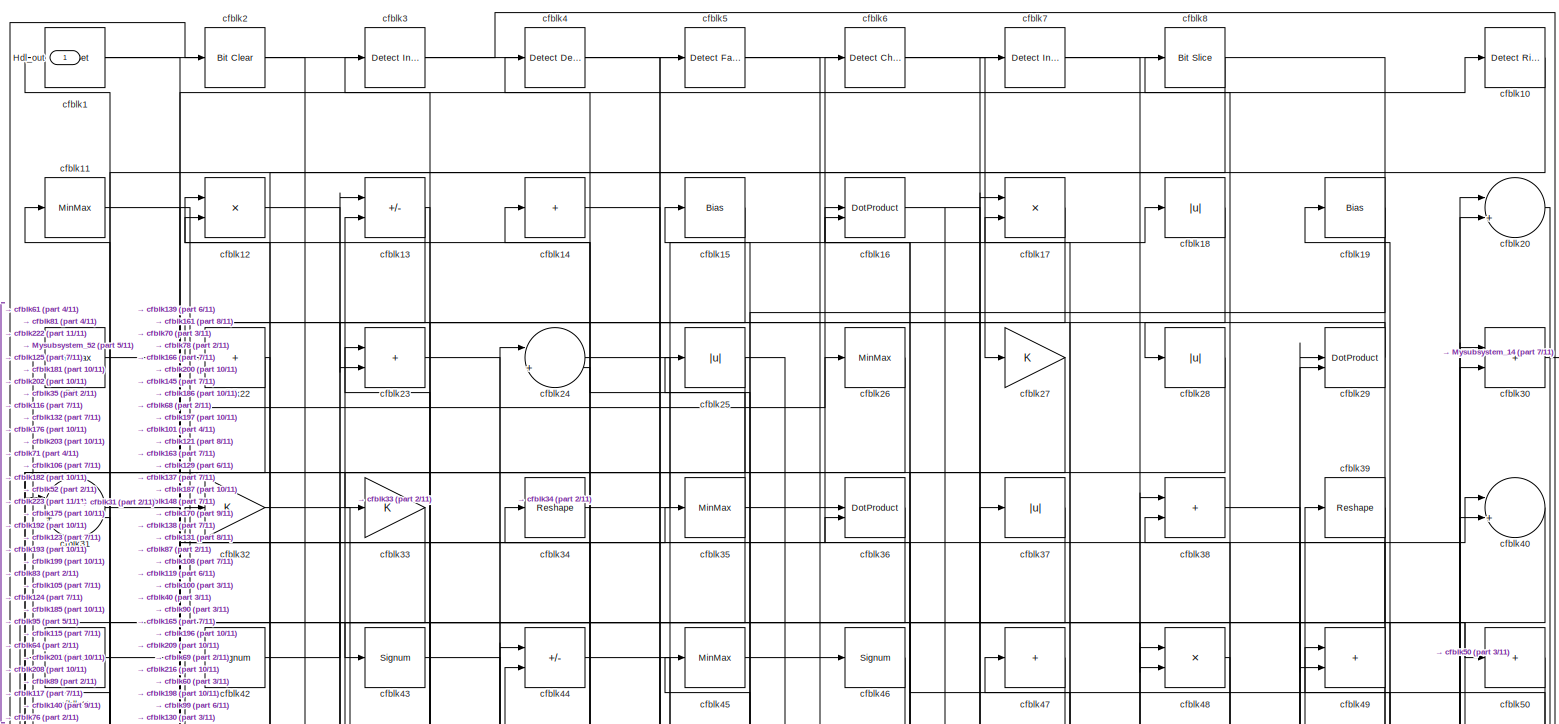
[diagram: root canvas - part 1/11, full width, top band]
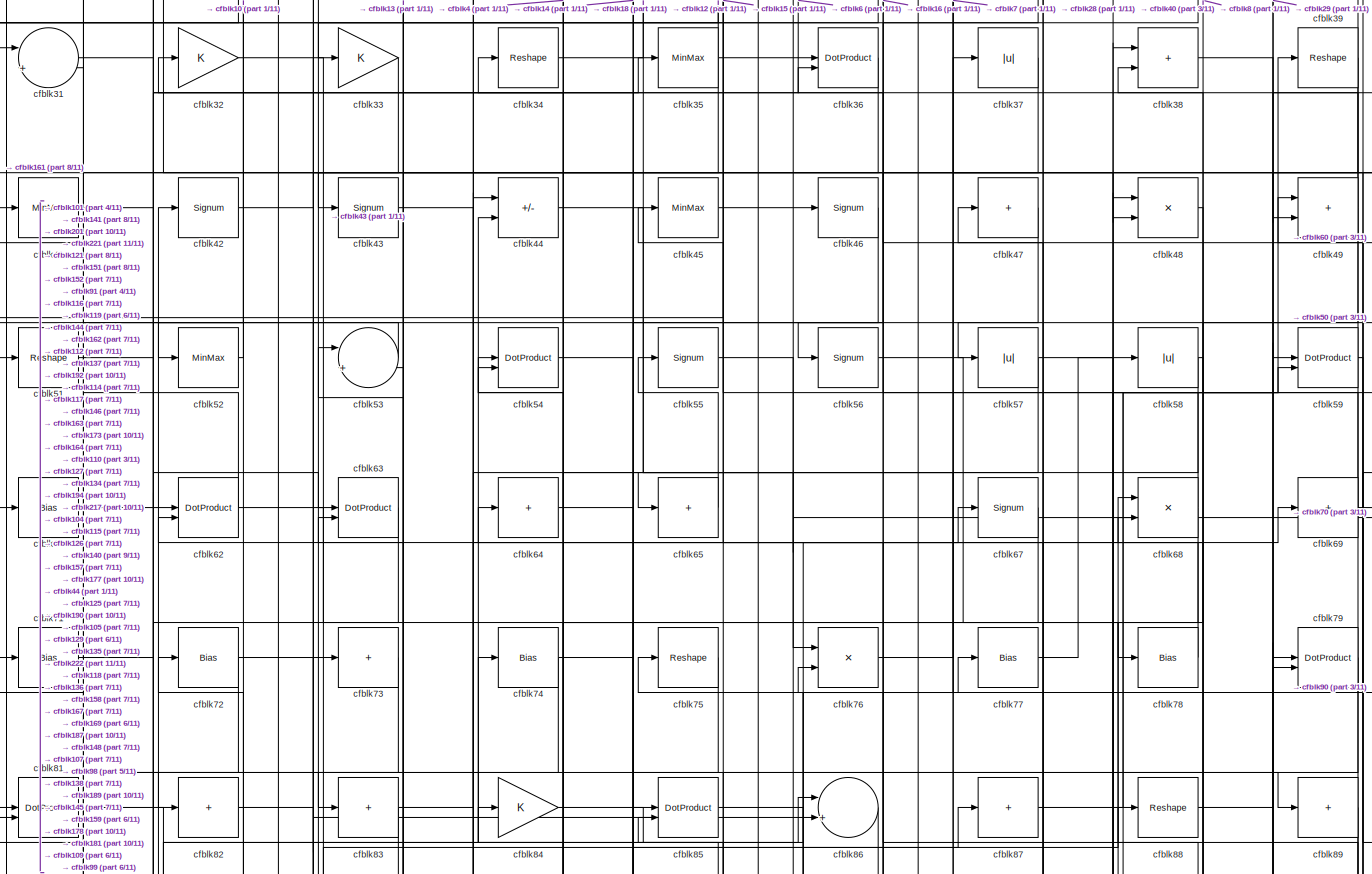
[diagram: root canvas - part 2/11, full width, top band]
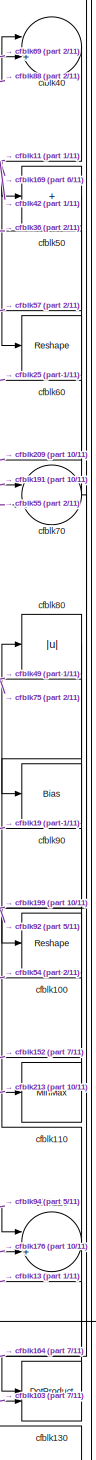
[diagram: root canvas - part 3/11, middle right region]
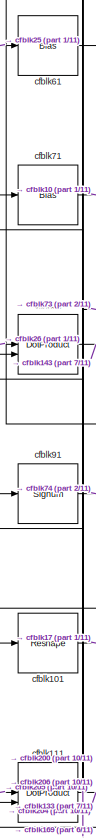
[diagram: root canvas - part 4/11, middle left region]
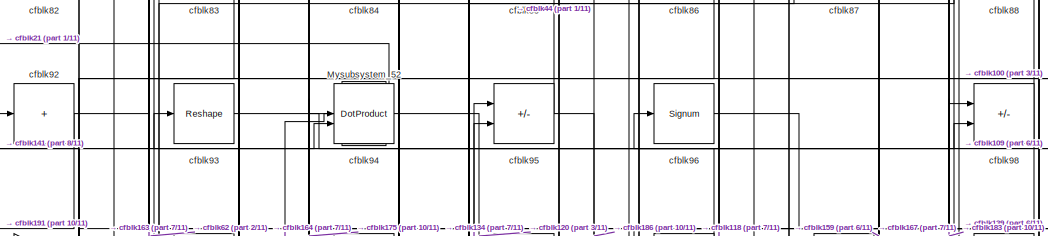
[diagram: root canvas - part 5/11, central region]
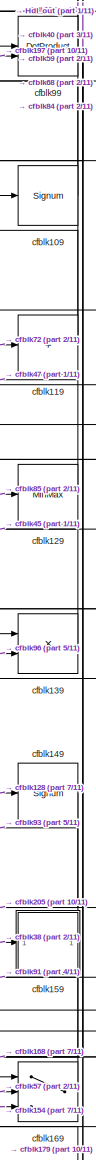
[diagram: root canvas - part 6/11, middle right region]
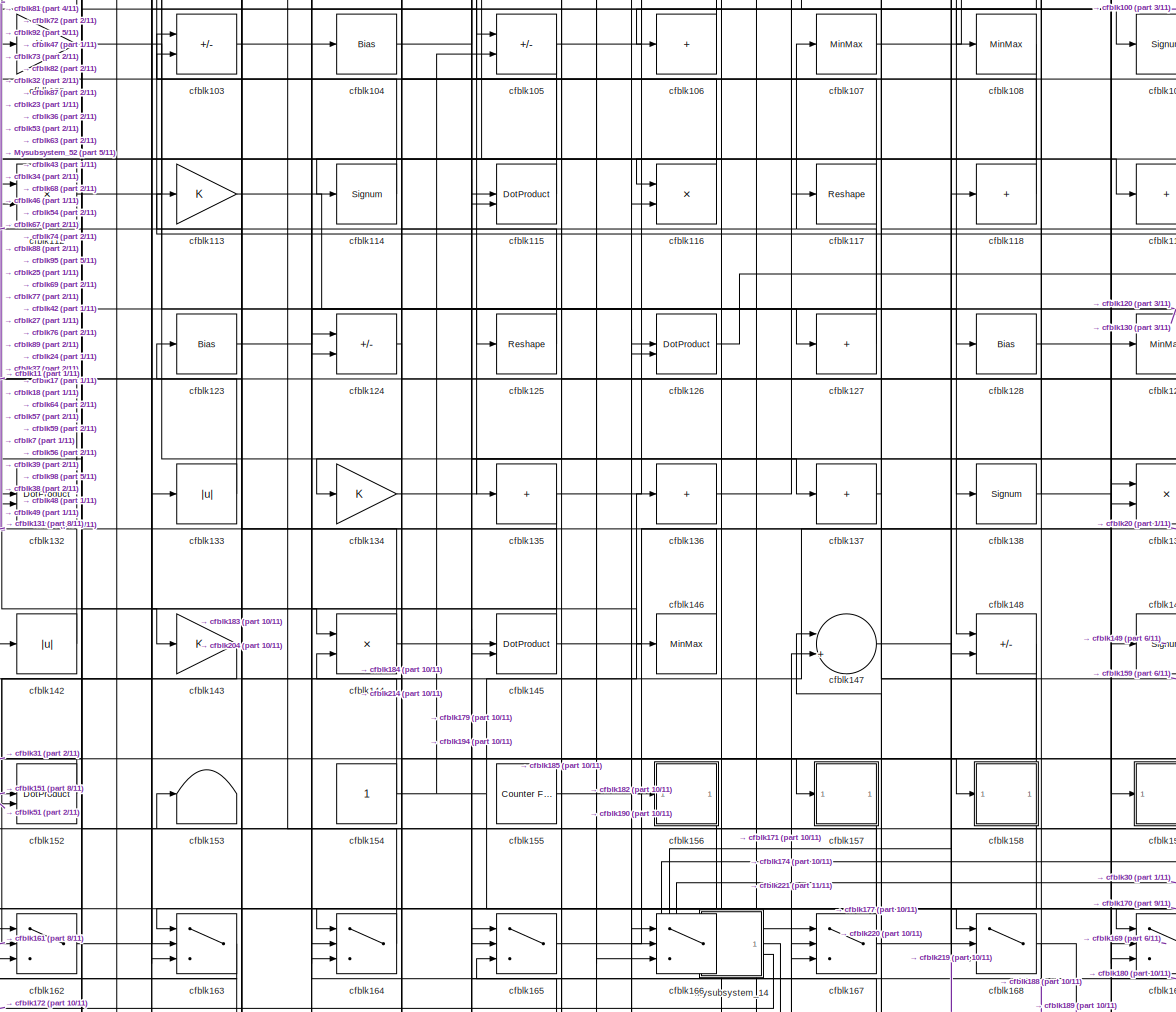
[diagram: root canvas - part 7/11, central region]
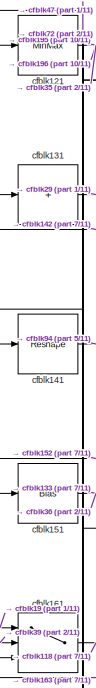
[diagram: root canvas - part 8/11, middle left region]
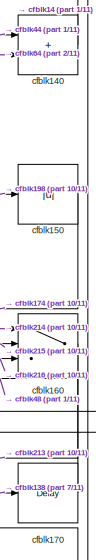
[diagram: root canvas - part 9/11, middle right region]
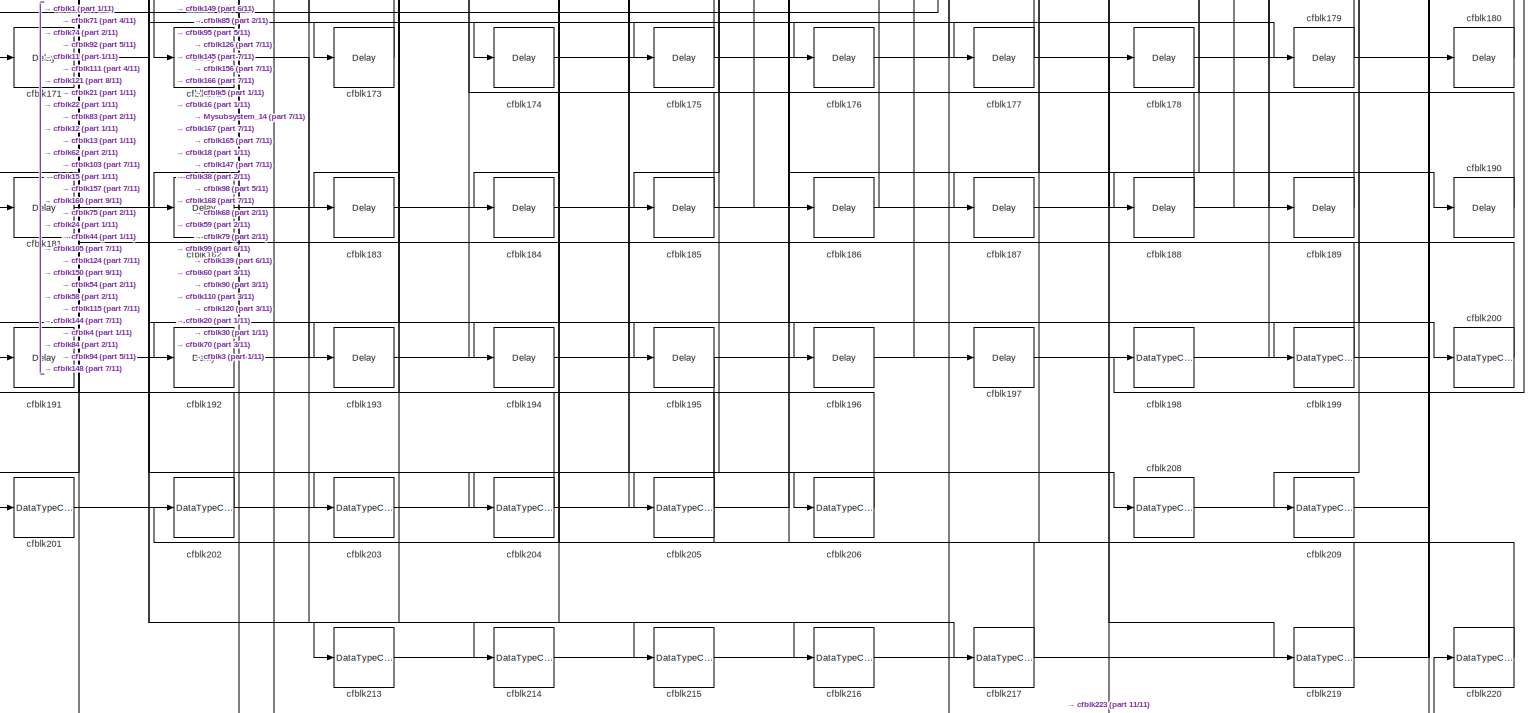
[diagram: root canvas - part 10/11, full width, bottom band]
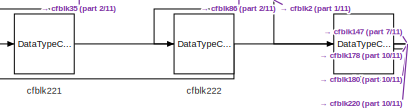
[diagram: root canvas - part 11/11, bottom left region]
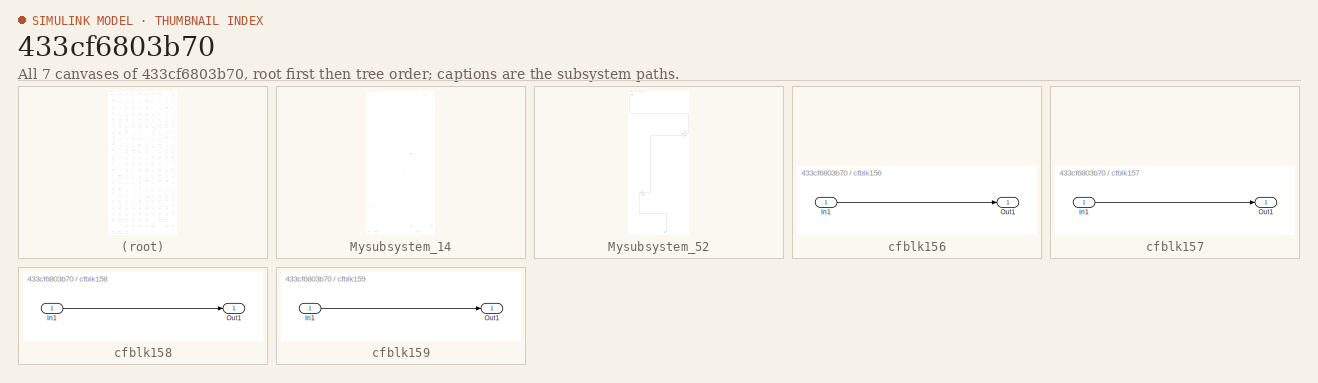
[diagram: thumbnail index - all 7 canvases of the model, root first then tree order]
MODEL slx_433cf6803b70
KIND model
CONFIG AbsTol = auto
CONFIG EnableMultiTasking = off
CONFIG FixedStep = auto
CONFIG MaxStep = auto
CONFIG MinStep = auto
CONFIG RelTol = 1e-3
CONFIG SampleTimeConstraint = Unconstrained
CONFIG SolverName = VariableStepAuto
CONFIG StartTime = 0.0
CONFIG StopTime = 10.0
BLOCK [Outport] Hdl_out
  OutDataTypeStr = uint8
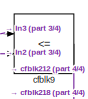
[diagram: Mysubsystem_14 - part 1/4, top right region]
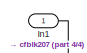
[diagram: Mysubsystem_14 - part 2/4, top right region]
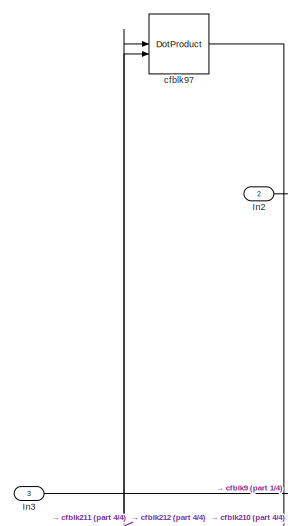
[diagram: Mysubsystem_14 - part 3/4, central region]
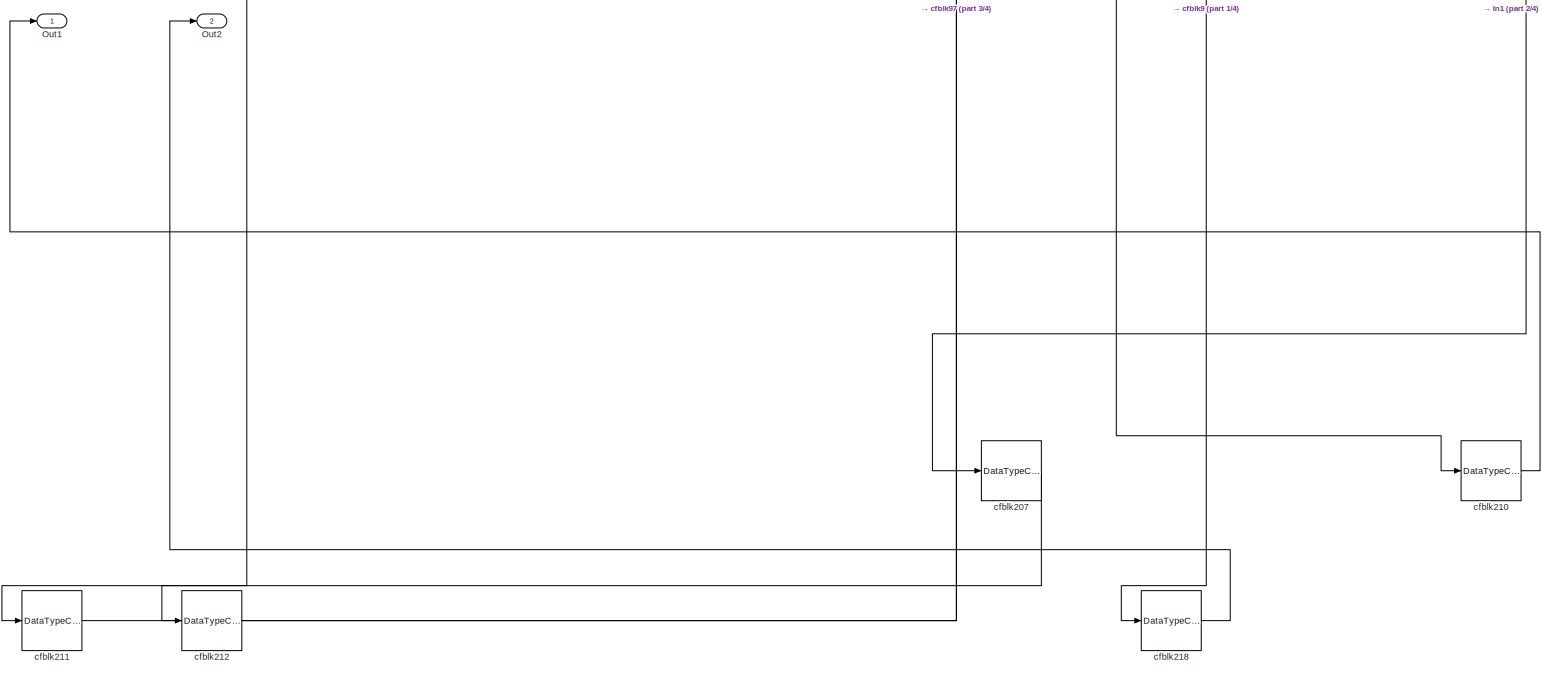
[diagram: Mysubsystem_14 - part 4/4, full width, bottom band]
BLOCK [SubSystem] Mysubsystem_14
  RTWFcnName = Mysubsystem_14
  RTWFcnNameOpts = User specified
  RTWFileNameOpts = Use function name
  RTWSystemCode = Reusable function
  TreatAsAtomicUnit = on
BLOCK [Inport] Mysubsystem_14/In1
BLOCK [Inport] Mysubsystem_14/In2
  Port = 2
BLOCK [Inport] Mysubsystem_14/In3
  Port = 3
BLOCK [Outport] Mysubsystem_14/Out1
BLOCK [Outport] Mysubsystem_14/Out2
  Port = 2
BLOCK [DataTypeConversion] Mysubsystem_14/cfblk207
  OutDataTypeStr = uint8
  RndMeth = Floor
  SaturateOnIntegerOverflow = off
BLOCK [DataTypeConversion] Mysubsystem_14/cfblk210
  OutDataTypeStr = uint8
  RndMeth = Floor
  SaturateOnIntegerOverflow = off
BLOCK [DataTypeConversion] Mysubsystem_14/cfblk211
  OutDataTypeStr = uint8
  RndMeth = Floor
  SaturateOnIntegerOverflow = off
BLOCK [DataTypeConversion] Mysubsystem_14/cfblk212
  OutDataTypeStr = uint8
  RndMeth = Floor
  SaturateOnIntegerOverflow = off
BLOCK [DataTypeConversion] Mysubsystem_14/cfblk218
  OutDataTypeStr = uint8
  RndMeth = Floor
  SaturateOnIntegerOverflow = off
BLOCK [RelationalOperator] Mysubsystem_14/cfblk9
  InputSameDT = off
  Operator = <=
  OutDataTypeStr = boolean
BLOCK [DotProduct] Mysubsystem_14/cfblk97
  OutDataTypeStr = Inherit: Inherit via internal rule
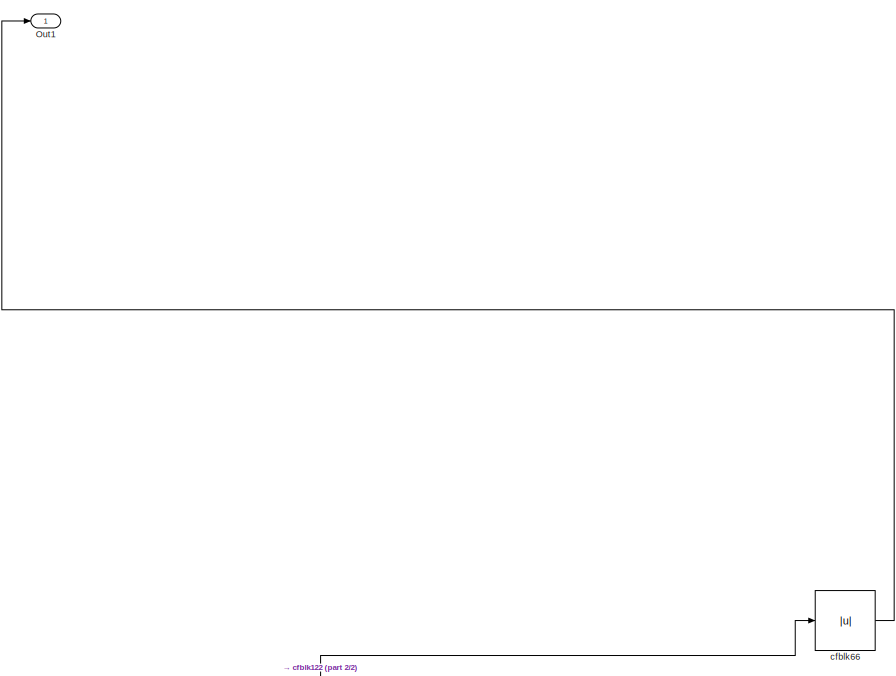
[diagram: Mysubsystem_52 - part 1/2, full width, top band]
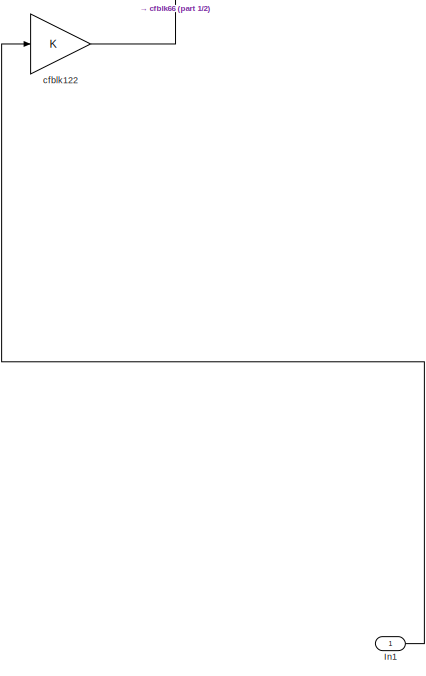
[diagram: Mysubsystem_52 - part 2/2, bottom center region]
BLOCK [SubSystem] Mysubsystem_52
  RTWFcnName = Mysubsystem_52
  RTWFcnNameOpts = User specified
  RTWFileNameOpts = Use function name
  RTWSystemCode = Reusable function
  TreatAsAtomicUnit = on
BLOCK [Inport] Mysubsystem_52/In1
BLOCK [Outport] Mysubsystem_52/Out1
BLOCK [Gain] Mysubsystem_52/cfblk122
BLOCK [Abs] Mysubsystem_52/cfblk66
  SaturateOnIntegerOverflow = off
BLOCK [Reference] cfblk1  REF=simulink/Logic and Bit
Operations/Bit Set
  LibrarySourceBlock = hdlsllib/Logic and Bit\nOperations/Bit Set
  SourceBlock = simulink/Logic and Bit\nOperations/Bit Set
  SourceType = Bit Set
BLOCK [Reference] cfblk10  REF=hdlsllib/Logic and Bit
Operations/Detect Rise
Positive
  SourceBlock = hdlsllib/Logic and Bit\nOperations/Detect Rise\nPositive
  SourceType = Detect Rise Positive
BLOCK [Reshape] cfblk100
BLOCK [Reshape] cfblk101
BLOCK [Gain] cfblk102
  OutDataTypeStr = uint8
BLOCK [Sum] cfblk103
  IconShape = rectangular
  Inputs = +-
  OutDataTypeStr = uint8
BLOCK [Bias] cfblk104
  Bias = 0.0
  SaturateOnIntegerOverflow = off
BLOCK [Sum] cfblk105
  IconShape = rectangular
  Inputs = +-
  OutDataTypeStr = uint8
BLOCK [Sum] cfblk106
  IconShape = rectangular
  Inputs = +
  OutDataTypeStr = uint8
BLOCK [MinMax] cfblk107
  OutDataTypeStr = uint8
BLOCK [MinMax] cfblk108
  OutDataTypeStr = uint8
BLOCK [Signum] cfblk109
BLOCK [MinMax] cfblk11
  OutDataTypeStr = uint8
BLOCK [MinMax] cfblk110
  OutDataTypeStr = uint8
BLOCK [DotProduct] cfblk111
  OutDataTypeStr = uint8
BLOCK [Product] cfblk112
  Inputs = */
  OutDataTypeStr = uint8
  RndMeth = Zero
  SaturateOnIntegerOverflow = on
BLOCK [Gain] cfblk113
  OutDataTypeStr = uint8
BLOCK [Signum] cfblk114
BLOCK [DotProduct] cfblk115
  OutDataTypeStr = uint8
BLOCK [Product] cfblk116
  Inputs = */
  OutDataTypeStr = uint8
  RndMeth = Zero
  SaturateOnIntegerOverflow = on
BLOCK [Reshape] cfblk117
BLOCK [Sum] cfblk118
  IconShape = rectangular
  Inputs = +
  OutDataTypeStr = uint8
BLOCK [Sum] cfblk119
  IconShape = rectangular
  Inputs = +
  OutDataTypeStr = uint8
BLOCK [Product] cfblk12
  Inputs = */
  OutDataTypeStr = uint8
  RndMeth = Zero
  SaturateOnIntegerOverflow = on
BLOCK [Sum] cfblk120
  Inputs = |++
  OutDataTypeStr = uint8
BLOCK [MinMax] cfblk121
  OutDataTypeStr = uint8
BLOCK [Bias] cfblk123
  Bias = 0.0
  SaturateOnIntegerOverflow = off
BLOCK [Sum] cfblk124
  IconShape = rectangular
  Inputs = +-
  OutDataTypeStr = uint8
BLOCK [Reshape] cfblk125
BLOCK [DotProduct] cfblk126
  OutDataTypeStr = uint8
BLOCK [Sum] cfblk127
  IconShape = rectangular
  Inputs = +
  OutDataTypeStr = uint8
BLOCK [Bias] cfblk128
  Bias = 0.0
  SaturateOnIntegerOverflow = off
BLOCK [MinMax] cfblk129
  OutDataTypeStr = uint8
BLOCK [Sum] cfblk13
  IconShape = rectangular
  Inputs = +-
  OutDataTypeStr = uint8
BLOCK [DotProduct] cfblk130
  OutDataTypeStr = uint8
BLOCK [Sum] cfblk131
  IconShape = rectangular
  Inputs = +
  OutDataTypeStr = uint8
BLOCK [DotProduct] cfblk132
  OutDataTypeStr = uint8
BLOCK [Abs] cfblk133
  OutDataTypeStr = uint8
  SaturateOnIntegerOverflow = off
BLOCK [Gain] cfblk134
  OutDataTypeStr = uint8
BLOCK [Sum] cfblk135
  IconShape = rectangular
  Inputs = +
  OutDataTypeStr = uint8
BLOCK [Sum] cfblk136
  IconShape = rectangular
  Inputs = +
  OutDataTypeStr = uint8
BLOCK [Sum] cfblk137
  IconShape = rectangular
  Inputs = +
  OutDataTypeStr = uint8
BLOCK [Signum] cfblk138
BLOCK [Product] cfblk139
  Inputs = */
  OutDataTypeStr = uint8
  RndMeth = Zero
  SaturateOnIntegerOverflow = on
BLOCK [Sum] cfblk14
  IconShape = rectangular
  Inputs = +
  OutDataTypeStr = uint8
BLOCK [Sum] cfblk140
  IconShape = rectangular
  OutDataTypeStr = uint8
BLOCK [Reshape] cfblk141
BLOCK [Abs] cfblk142
  OutDataTypeStr = uint8
  SaturateOnIntegerOverflow = off
BLOCK [Gain] cfblk143
  OutDataTypeStr = uint8
BLOCK [Product] cfblk144
  Inputs = */
  OutDataTypeStr = uint8
  RndMeth = Zero
  SaturateOnIntegerOverflow = on
BLOCK [DotProduct] cfblk145
  OutDataTypeStr = uint8
BLOCK [MinMax] cfblk146
  OutDataTypeStr = uint8
BLOCK [Sum] cfblk147
  Inputs = |++
  OutDataTypeStr = uint8
BLOCK [Sum] cfblk148
  IconShape = rectangular
  Inputs = +-
  OutDataTypeStr = uint8
BLOCK [Signum] cfblk149
BLOCK [Bias] cfblk15
  Bias = 0.0
  SaturateOnIntegerOverflow = off
BLOCK [Abs] cfblk150
  OutDataTypeStr = uint8
  SaturateOnIntegerOverflow = off
BLOCK [Bias] cfblk151
  Bias = 0.0
  SaturateOnIntegerOverflow = off
BLOCK [DotProduct] cfblk152
  OutDataTypeStr = uint8
BLOCK [Terminator] cfblk153
BLOCK [Constant] cfblk154
  OutDataTypeStr = uint8
  SampleTime = -1
BLOCK [Reference] cfblk155  REF=hdlsllib/Sources/Counter
Free-Running
  SourceBlock = hdlsllib/Sources/Counter\nFree-Running
  SourceType = Counter Free-Running
BLOCK [SubSystem] cfblk156
  LibrarySourceBlock = hdlsllib/Ports &\nSubsystems/Subsystem
BLOCK [Inport] cfblk156/In1
BLOCK [Outport] cfblk156/Out1
BLOCK [SubSystem] cfblk157
  LibrarySourceBlock = hdlsllib/Ports &\nSubsystems/Subsystem
BLOCK [Inport] cfblk157/In1
BLOCK [Outport] cfblk157/Out1
BLOCK [SubSystem] cfblk158
  LibrarySourceBlock = hdlsllib/Ports &\nSubsystems/Subsystem
BLOCK [Inport] cfblk158/In1
BLOCK [Outport] cfblk158/Out1
BLOCK [SubSystem] cfblk159
  LibrarySourceBlock = hdlsllib/Ports &\nSubsystems/Subsystem
BLOCK [Inport] cfblk159/In1
BLOCK [Outport] cfblk159/Out1
BLOCK [DotProduct] cfblk16
  OutDataTypeStr = uint8
BLOCK [Switch] cfblk160
  InputSameDT = off
  OutDataTypeStr = uint8
  SaturateOnIntegerOverflow = off
BLOCK [Switch] cfblk161
  InputSameDT = off
  OutDataTypeStr = uint8
  SaturateOnIntegerOverflow = off
BLOCK [Switch] cfblk162
  InputSameDT = off
  OutDataTypeStr = uint8
  SaturateOnIntegerOverflow = off
BLOCK [Switch] cfblk163
  InputSameDT = off
  OutDataTypeStr = uint8
  SaturateOnIntegerOverflow = off
BLOCK [Switch] cfblk164
  InputSameDT = off
  OutDataTypeStr = uint8
  SaturateOnIntegerOverflow = off
BLOCK [Switch] cfblk165
  InputSameDT = off
  OutDataTypeStr = uint8
  SaturateOnIntegerOverflow = off
BLOCK [Switch] cfblk166
  InputSameDT = off
  OutDataTypeStr = uint8
  SaturateOnIntegerOverflow = off
BLOCK [Switch] cfblk167
  InputSameDT = off
  OutDataTypeStr = uint8
  SaturateOnIntegerOverflow = off
BLOCK [Switch] cfblk168
  InputSameDT = off
  OutDataTypeStr = uint8
  SaturateOnIntegerOverflow = off
BLOCK [Switch] cfblk169
  InputSameDT = off
  OutDataTypeStr = uint8
  SaturateOnIntegerOverflow = off
BLOCK [Product] cfblk17
  Inputs = */
  OutDataTypeStr = uint8
  RndMeth = Zero
  SaturateOnIntegerOverflow = on
BLOCK [Delay] cfblk170
  InputPortMap = u0
  SampleTime = 1
BLOCK [Delay] cfblk171
  InputPortMap = u0
  SampleTime = 1
BLOCK [Delay] cfblk172
  InputPortMap = u0
  SampleTime = 1
BLOCK [Delay] cfblk173
  InputPortMap = u0
  SampleTime = 1
BLOCK [Delay] cfblk174
  InputPortMap = u0
  SampleTime = 1
BLOCK [Delay] cfblk175
  InputPortMap = u0
  SampleTime = 1
BLOCK [Delay] cfblk176
  InputPortMap = u0
  SampleTime = 1
BLOCK [Delay] cfblk177
  InputPortMap = u0
  SampleTime = 1
BLOCK [Delay] cfblk178
  InputPortMap = u0
  SampleTime = 1
BLOCK [Delay] cfblk179
  InputPortMap = u0
  SampleTime = 1
BLOCK [Abs] cfblk18
  OutDataTypeStr = uint8
  SaturateOnIntegerOverflow = off
BLOCK [Delay] cfblk180
  InputPortMap = u0
  SampleTime = 1
BLOCK [Delay] cfblk181
  InputPortMap = u0
  SampleTime = 1
BLOCK [Delay] cfblk182
  InputPortMap = u0
  SampleTime = 1
BLOCK [Delay] cfblk183
  InputPortMap = u0
  SampleTime = 1
BLOCK [Delay] cfblk184
  InputPortMap = u0
  SampleTime = 1
BLOCK [Delay] cfblk185
  InputPortMap = u0
  SampleTime = 1
BLOCK [Delay] cfblk186
  InputPortMap = u0
  SampleTime = 1
BLOCK [Delay] cfblk187
  InputPortMap = u0
  SampleTime = 1
BLOCK [Delay] cfblk188
  InputPortMap = u0
  SampleTime = 1
BLOCK [Delay] cfblk189
  InputPortMap = u0
  SampleTime = 1
BLOCK [Bias] cfblk19
  Bias = 0.0
  SaturateOnIntegerOverflow = off
BLOCK [Delay] cfblk190
  InputPortMap = u0
  SampleTime = 1
BLOCK [Delay] cfblk191
  InputPortMap = u0
  SampleTime = 1
BLOCK [Delay] cfblk192
  InputPortMap = u0
  SampleTime = 1
BLOCK [Delay] cfblk193
  InputPortMap = u0
  SampleTime = 1
BLOCK [Delay] cfblk194
  InputPortMap = u0
  SampleTime = 1
BLOCK [Delay] cfblk195
  InputPortMap = u0
  SampleTime = 1
BLOCK [Delay] cfblk196
  InputPortMap = u0
  SampleTime = 1
BLOCK [Delay] cfblk197
  InputPortMap = u0
  SampleTime = 1
BLOCK [DataTypeConversion] cfblk198
  OutDataTypeStr = uint8
  RndMeth = Floor
  SaturateOnIntegerOverflow = off
BLOCK [DataTypeConversion] cfblk199
  OutDataTypeStr = uint8
  RndMeth = Floor
  SaturateOnIntegerOverflow = off
BLOCK [Reference] cfblk2  REF=simulink/Logic and Bit
Operations/Bit Clear
  LibrarySourceBlock = hdlsllib/Logic and Bit\nOperations/Bit Clear
  SourceBlock = simulink/Logic and Bit\nOperations/Bit Clear
  SourceType = Bit Clear
BLOCK [Sum] cfblk20
  Inputs = |++
  OutDataTypeStr = uint8
BLOCK [DataTypeConversion] cfblk200
  OutDataTypeStr = uint8
  RndMeth = Floor
  SaturateOnIntegerOverflow = off
BLOCK [DataTypeConversion] cfblk201
  OutDataTypeStr = uint8
  RndMeth = Floor
  SaturateOnIntegerOverflow = off
BLOCK [DataTypeConversion] cfblk202
  OutDataTypeStr = uint8
  RndMeth = Floor
  SaturateOnIntegerOverflow = off
BLOCK [DataTypeConversion] cfblk203
  OutDataTypeStr = uint8
  RndMeth = Floor
  SaturateOnIntegerOverflow = off
BLOCK [DataTypeConversion] cfblk204
  OutDataTypeStr = uint8
  RndMeth = Floor
  SaturateOnIntegerOverflow = off
BLOCK [DataTypeConversion] cfblk205
  OutDataTypeStr = uint8
  RndMeth = Floor
  SaturateOnIntegerOverflow = off
BLOCK [DataTypeConversion] cfblk206
  OutDataTypeStr = uint8
  RndMeth = Floor
  SaturateOnIntegerOverflow = off
BLOCK [DataTypeConversion] cfblk208
  OutDataTypeStr = uint8
  RndMeth = Floor
  SaturateOnIntegerOverflow = off
BLOCK [DataTypeConversion] cfblk209
  OutDataTypeStr = uint8
  RndMeth = Floor
  SaturateOnIntegerOverflow = off
BLOCK [MinMax] cfblk21
  OutDataTypeStr = uint8
BLOCK [DataTypeConversion] cfblk213
  OutDataTypeStr = uint8
  RndMeth = Floor
  SaturateOnIntegerOverflow = off
BLOCK [DataTypeConversion] cfblk214
  OutDataTypeStr = uint8
  RndMeth = Floor
  SaturateOnIntegerOverflow = off
BLOCK [DataTypeConversion] cfblk215
  OutDataTypeStr = uint8
  RndMeth = Floor
  SaturateOnIntegerOverflow = off
BLOCK [DataTypeConversion] cfblk216
  OutDataTypeStr = uint8
  RndMeth = Floor
  SaturateOnIntegerOverflow = off
BLOCK [DataTypeConversion] cfblk217
  OutDataTypeStr = uint8
  RndMeth = Floor
  SaturateOnIntegerOverflow = off
BLOCK [DataTypeConversion] cfblk219
  OutDataTypeStr = uint8
  RndMeth = Floor
  SaturateOnIntegerOverflow = off
BLOCK [Sum] cfblk22
  IconShape = rectangular
  Inputs = +
  OutDataTypeStr = uint8
BLOCK [DataTypeConversion] cfblk220
  OutDataTypeStr = uint8
  RndMeth = Floor
  SaturateOnIntegerOverflow = off
BLOCK [DataTypeConversion] cfblk221
  OutDataTypeStr = uint8
  RndMeth = Floor
  SaturateOnIntegerOverflow = off
BLOCK [DataTypeConversion] cfblk222
  OutDataTypeStr = uint8
  RndMeth = Floor
  SaturateOnIntegerOverflow = off
BLOCK [DataTypeConversion] cfblk223
  OutDataTypeStr = uint8
  RndMeth = Floor
  SaturateOnIntegerOverflow = off
BLOCK [Sum] cfblk23
  IconShape = rectangular
  OutDataTypeStr = uint8
BLOCK [Sum] cfblk24
  Inputs = |++
  OutDataTypeStr = uint8
BLOCK [Abs] cfblk25
  OutDataTypeStr = uint8
  SaturateOnIntegerOverflow = off
BLOCK [MinMax] cfblk26
  OutDataTypeStr = uint8
BLOCK [Gain] cfblk27
  OutDataTypeStr = uint8
BLOCK [Abs] cfblk28
  OutDataTypeStr = uint8
  SaturateOnIntegerOverflow = off
BLOCK [DotProduct] cfblk29
  OutDataTypeStr = uint8
BLOCK [Reference] cfblk3  REF=simulink/Logic and Bit
Operations/Detect
Increase
  LibrarySourceBlock = hdlsllib/Logic and Bit\nOperations/Detect\nIncrease
  SourceBlock = simulink/Logic and Bit\nOperations/Detect\nIncrease
  SourceType = Detect Increase
BLOCK [Sum] cfblk30
  IconShape = rectangular
  OutDataTypeStr = uint8
BLOCK [Sum] cfblk31
  Inputs = |++
  OutDataTypeStr = uint8
BLOCK [Gain] cfblk32
  OutDataTypeStr = uint8
BLOCK [Gain] cfblk33
  OutDataTypeStr = uint8
BLOCK [Reshape] cfblk34
BLOCK [MinMax] cfblk35
  OutDataTypeStr = uint8
BLOCK [DotProduct] cfblk36
  OutDataTypeStr = uint8
BLOCK [Abs] cfblk37
  OutDataTypeStr = uint8
  SaturateOnIntegerOverflow = off
BLOCK [Sum] cfblk38
  IconShape = rectangular
  OutDataTypeStr = uint8
BLOCK [Reshape] cfblk39
BLOCK [Reference] cfblk4  REF=simulink/Logic and Bit
Operations/Detect
Decrease
  LibrarySourceBlock = hdlsllib/Logic and Bit\nOperations/Detect\nDecrease
  SourceBlock = simulink/Logic and Bit\nOperations/Detect\nDecrease
  SourceType = Detect Decrease
BLOCK [Sum] cfblk40
  Inputs = |++
  OutDataTypeStr = uint8
BLOCK [MinMax] cfblk41
  OutDataTypeStr = uint8
BLOCK [Signum] cfblk42
BLOCK [Signum] cfblk43
BLOCK [Sum] cfblk44
  IconShape = rectangular
  Inputs = +-
  OutDataTypeStr = uint8
BLOCK [MinMax] cfblk45
  OutDataTypeStr = uint8
BLOCK [Signum] cfblk46
BLOCK [Sum] cfblk47
  IconShape = rectangular
  Inputs = +
  OutDataTypeStr = uint8
BLOCK [Product] cfblk48
  Inputs = */
  OutDataTypeStr = uint8
  RndMeth = Zero
  SaturateOnIntegerOverflow = on
BLOCK [Sum] cfblk49
  IconShape = rectangular
  OutDataTypeStr = uint8
BLOCK [Reference] cfblk5  REF=hdlsllib/Logic and Bit
Operations/Detect Fall
Negative
  SourceBlock = hdlsllib/Logic and Bit\nOperations/Detect Fall\nNegative
  SourceType = Detect Fall Negative
BLOCK [Sum] cfblk50
  IconShape = rectangular
  Inputs = +
  OutDataTypeStr = uint8
BLOCK [Reshape] cfblk51
BLOCK [MinMax] cfblk52
  OutDataTypeStr = uint8
BLOCK [Sum] cfblk53
  Inputs = |++
  OutDataTypeStr = uint8
BLOCK [DotProduct] cfblk54
  OutDataTypeStr = uint8
BLOCK [Signum] cfblk55
BLOCK [Signum] cfblk56
BLOCK [Abs] cfblk57
  OutDataTypeStr = uint8
  SaturateOnIntegerOverflow = off
BLOCK [Abs] cfblk58
  OutDataTypeStr = uint8
  SaturateOnIntegerOverflow = off
BLOCK [DotProduct] cfblk59
  OutDataTypeStr = uint8
BLOCK [Reference] cfblk6  REF=simulink/Logic and Bit
Operations/Detect
Change
  LibrarySourceBlock = hdlsllib/Logic and Bit\nOperations/Detect\nChange
  SourceBlock = simulink/Logic and Bit\nOperations/Detect\nChange
  SourceType = Detect Change
BLOCK [Reshape] cfblk60
BLOCK [Bias] cfblk61
  Bias = 0.0
  SaturateOnIntegerOverflow = off
BLOCK [DotProduct] cfblk62
  OutDataTypeStr = uint8
BLOCK [DotProduct] cfblk63
  OutDataTypeStr = uint8
BLOCK [Sum] cfblk64
  IconShape = rectangular
  Inputs = +
  OutDataTypeStr = uint8
BLOCK [Sum] cfblk65
  IconShape = rectangular
  Inputs = +
  OutDataTypeStr = uint8
BLOCK [Signum] cfblk67
BLOCK [Product] cfblk68
  Inputs = */
  OutDataTypeStr = uint8
  RndMeth = Zero
  SaturateOnIntegerOverflow = on
BLOCK [Sum] cfblk69
  IconShape = rectangular
  Inputs = +
  OutDataTypeStr = uint8
BLOCK [Reference] cfblk7  REF=simulink/Logic and Bit
Operations/Detect
Increase
  LibrarySourceBlock = hdlsllib/Logic and Bit\nOperations/Detect\nIncrease
  SourceBlock = simulink/Logic and Bit\nOperations/Detect\nIncrease
  SourceType = Detect Increase
BLOCK [Sum] cfblk70
  Inputs = |++
  OutDataTypeStr = uint8
BLOCK [Bias] cfblk71
  Bias = 0.0
  SaturateOnIntegerOverflow = off
BLOCK [Bias] cfblk72
  Bias = 0.0
  SaturateOnIntegerOverflow = off
BLOCK [Sum] cfblk73
  IconShape = rectangular
  Inputs = +
  OutDataTypeStr = uint8
BLOCK [Bias] cfblk74
  Bias = 0.0
  SaturateOnIntegerOverflow = off
BLOCK [Reshape] cfblk75
BLOCK [Product] cfblk76
  Inputs = */
  OutDataTypeStr = uint8
  RndMeth = Zero
  SaturateOnIntegerOverflow = on
BLOCK [Bias] cfblk77
  Bias = 0.0
  SaturateOnIntegerOverflow = off
BLOCK [Bias] cfblk78
  Bias = 0.0
  SaturateOnIntegerOverflow = off
BLOCK [DotProduct] cfblk79
  OutDataTypeStr = uint8
BLOCK [Reference] cfblk8  REF=hdlsllib/Logic and Bit
Operations/Bit Slice
  SourceBlock = hdlsllib/Logic and Bit\nOperations/Bit Slice
  SourceType = Bit Slice
BLOCK [Abs] cfblk80
  OutDataTypeStr = uint8
  SaturateOnIntegerOverflow = off
BLOCK [DotProduct] cfblk81
  OutDataTypeStr = uint8
BLOCK [Sum] cfblk82
  IconShape = rectangular
  Inputs = +
  OutDataTypeStr = uint8
BLOCK [Sum] cfblk83
  IconShape = rectangular
  Inputs = +
  OutDataTypeStr = uint8
BLOCK [Gain] cfblk84
  OutDataTypeStr = uint8
BLOCK [DotProduct] cfblk85
  OutDataTypeStr = uint8
BLOCK [Sum] cfblk86
  Inputs = |++
  OutDataTypeStr = uint8
BLOCK [Sum] cfblk87
  IconShape = rectangular
  Inputs = +
  OutDataTypeStr = uint8
BLOCK [Reshape] cfblk88
BLOCK [Sum] cfblk89
  IconShape = rectangular
  Inputs = +
  OutDataTypeStr = uint8
BLOCK [Bias] cfblk90
  Bias = 0.0
  SaturateOnIntegerOverflow = off
BLOCK [Signum] cfblk91
BLOCK [Sum] cfblk92
  IconShape = rectangular
  Inputs = +
  OutDataTypeStr = uint8
BLOCK [Reshape] cfblk93
BLOCK [DotProduct] cfblk94
  OutDataTypeStr = uint8
BLOCK [Sum] cfblk95
  IconShape = rectangular
  Inputs = +-
  OutDataTypeStr = uint8
BLOCK [Signum] cfblk96
BLOCK [Sum] cfblk98
  IconShape = rectangular
  Inputs = +-
  OutDataTypeStr = uint8
BLOCK [DotProduct] cfblk99
  OutDataTypeStr = uint8
LINE Mysubsystem_14/In1:1 -> Mysubsystem_14/cfblk207:1
LINE Mysubsystem_14/In2:1 -> Mysubsystem_14/cfblk9:2
LINE Mysubsystem_14/In3:1 -> Mysubsystem_14/cfblk9:1
LINE Mysubsystem_14/cfblk207:1 -> Mysubsystem_14/cfblk211:1
LINE Mysubsystem_14/cfblk210:1 -> Mysubsystem_14/Out1:1
LINE Mysubsystem_14/cfblk211:1 -> Mysubsystem_14/cfblk97:1
LINE Mysubsystem_14/cfblk212:1 -> Mysubsystem_14/cfblk97:2
LINE Mysubsystem_14/cfblk218:1 -> Mysubsystem_14/Out2:1
LINE Mysubsystem_14/cfblk97:1 -> Mysubsystem_14/cfblk210:1
NET Mysubsystem_14/cfblk9:1 -> Mysubsystem_14/cfblk212:1, Mysubsystem_14/cfblk218:1
LINE Mysubsystem_14:1 -> cfblk171:1
LINE Mysubsystem_14:2 -> cfblk172:1
LINE Mysubsystem_52/In1:1 -> Mysubsystem_52/cfblk122:1
LINE Mysubsystem_52/cfblk122:1 -> Mysubsystem_52/cfblk66:1
LINE Mysubsystem_52/cfblk66:1 -> Mysubsystem_52/Out1:1
LINE Mysubsystem_52:1 -> cfblk21:1
NET cfblk100:1 -> cfblk152:1, cfblk19:1
LINE cfblk101:1 -> cfblk17:1
LINE cfblk102:1 -> cfblk124:2
NET cfblk103:1 -> cfblk104:1, cfblk130:2, cfblk146:1
LINE cfblk104:1 -> cfblk88:1
NET cfblk105:1 -> cfblk114:1, cfblk184:1, cfblk69:1
LINE cfblk106:1 -> cfblk42:1
NET cfblk107:1 -> Mysubsystem_14:2, cfblk39:1
LINE cfblk108:1 -> cfblk112:1
LINE cfblk109:1 -> cfblk96:1
LINE cfblk10:1 -> cfblk52:1
LINE cfblk110:1 -> cfblk54:1
LINE cfblk111:1 -> cfblk204:1
LINE cfblk112:1 -> cfblk87:1
LINE cfblk113:1 -> cfblk128:1
LINE cfblk114:1 -> cfblk63:2
LINE cfblk115:1 -> cfblk24:2
LINE cfblk116:1 -> cfblk72:1
NET cfblk117:1 -> cfblk132:1, cfblk135:1, cfblk53:1
NET cfblk118:1 -> cfblk76:2, cfblk95:1
NET cfblk119:1 -> Hdl_out:1, cfblk84:1
NET cfblk11:1 -> cfblk216:1, cfblk60:1
NET cfblk120:1 -> cfblk164:3, cfblk80:1
NET cfblk121:1 -> cfblk195:1, cfblk196:1, cfblk35:1
NET cfblk123:1 -> cfblk127:1, cfblk23:1
LINE cfblk124:1 -> cfblk214:1
LINE cfblk125:1 -> cfblk41:1
LINE cfblk126:1 -> Mysubsystem_14:3
NET cfblk127:1 -> cfblk107:1, cfblk34:1
LINE cfblk128:1 -> cfblk149:1
LINE cfblk129:1 -> cfblk47:1
LINE cfblk12:1 -> cfblk175:1
LINE cfblk130:1 -> cfblk13:2
LINE cfblk131:1 -> cfblk29:2
LINE cfblk132:1 -> cfblk11:1
LINE cfblk133:1 -> cfblk81:2
LINE cfblk134:1 -> cfblk95:2
NET cfblk135:1 -> cfblk162:1, cfblk77:1
LINE cfblk136:1 -> cfblk37:1
LINE cfblk137:1 -> cfblk17:2
NET cfblk138:1 -> cfblk170:1, cfblk38:2
LINE cfblk139:1 -> cfblk45:1
NET cfblk13:1 -> cfblk23:2, cfblk83:1
LINE cfblk140:1 -> cfblk14:1
LINE cfblk141:1 -> cfblk94:2
LINE cfblk142:1 -> cfblk131:1
LINE cfblk143:1 -> cfblk142:1
NET cfblk144:1 -> cfblk102:1, cfblk179:1
NET cfblk145:1 -> cfblk123:1, cfblk168:3, cfblk190:1, cfblk79:2
LINE cfblk146:1 -> cfblk53:2
LINE cfblk147:1 -> cfblk219:1
LINE cfblk148:1 -> cfblk185:1
LINE cfblk149:1 -> cfblk205:1
LINE cfblk14:1 -> cfblk89:1
LINE cfblk150:1 -> cfblk174:1
NET cfblk151:1 -> cfblk133:1, cfblk36:2
LINE cfblk152:1 -> cfblk151:1
NET cfblk154:1 -> cfblk103:1, cfblk105:2, cfblk113:1, cfblk136:1, cfblk169:3
NET cfblk155:1 -> cfblk167:3, cfblk168:1
LINE cfblk156/In1:1 -> cfblk156/Out1:1
LINE cfblk156:1 -> cfblk165:2
LINE cfblk157/In1:1 -> cfblk157/Out1:1
LINE cfblk157:1 -> cfblk183:1
LINE cfblk158/In1:1 -> cfblk158/Out1:1
NET cfblk158:1 -> cfblk162:2, cfblk64:1
LINE cfblk159/In1:1 -> cfblk159/Out1:1
NET cfblk159:1 -> cfblk168:2, cfblk93:1
LINE cfblk15:1 -> cfblk193:1
LINE cfblk160:1 -> cfblk213:1
LINE cfblk161:1 -> cfblk118:1
LINE cfblk162:1 -> cfblk73:1
LINE cfblk163:1 -> cfblk161:3
LINE cfblk164:1 -> Mysubsystem_52:1
LINE cfblk165:1 -> cfblk20:1
LINE cfblk166:1 -> cfblk167:1
NET cfblk167:1 -> cfblk153:1, cfblk59:2, cfblk92:1
NET cfblk168:1 -> cfblk188:1, cfblk189:1
LINE cfblk169:1 -> cfblk91:1
NET cfblk16:1 -> cfblk197:1, cfblk48:2
LINE cfblk170:1 -> cfblk48:1
LINE cfblk171:1 -> cfblk215:1
LINE cfblk172:1 -> cfblk217:1
LINE cfblk173:1 -> cfblk62:1
LINE cfblk174:1 -> cfblk167:2
LINE cfblk175:1 -> cfblk94:1
LINE cfblk176:1 -> cfblk120:2
LINE cfblk177:1 -> cfblk165:1
LINE cfblk178:1 -> cfblk79:1
LINE cfblk179:1 -> cfblk139:1
LINE cfblk17:1 -> cfblk22:1
LINE cfblk180:1 -> cfblk165:3
LINE cfblk181:1 -> cfblk59:1
LINE cfblk182:1 -> cfblk166:2
LINE cfblk183:1 -> cfblk98:1
LINE cfblk184:1 -> cfblk166:1
LINE cfblk185:1 -> cfblk44:1
LINE cfblk186:1 -> cfblk16:2
LINE cfblk187:1 -> cfblk38:1
LINE cfblk188:1 -> cfblk145:1
LINE cfblk189:1 -> cfblk68:2
NET cfblk18:1 -> cfblk132:2, cfblk187:1
LINE cfblk190:1 -> cfblk85:2
LINE cfblk191:1 -> cfblk70:1
LINE cfblk192:1 -> cfblk13:1
LINE cfblk193:1 -> cfblk24:1
LINE cfblk194:1 -> cfblk115:1
LINE cfblk195:1 -> cfblk202:1
LINE cfblk196:1 -> cfblk20:2
LINE cfblk197:1 -> cfblk99:2
LINE cfblk198:1 -> cfblk150:1
LINE cfblk199:1 -> cfblk3:1
LINE cfblk19:1 -> cfblk161:1
LINE cfblk1:1 -> cfblk203:1
LINE cfblk200:1 -> cfblk71:1
LINE cfblk201:1 -> cfblk5:1
LINE cfblk202:1 -> cfblk1:1
LINE cfblk203:1 -> cfblk206:1
NET cfblk204:1 -> cfblk103:2, cfblk156:1
LINE cfblk205:1 -> cfblk111:1
LINE cfblk206:1 -> cfblk111:2
LINE cfblk208:1 -> cfblk30:1
LINE cfblk209:1 -> cfblk30:2
LINE cfblk20:1 -> cfblk99:1
LINE cfblk213:1 -> cfblk110:1
LINE cfblk214:1 -> cfblk160:1
LINE cfblk215:1 -> cfblk160:2
LINE cfblk216:1 -> cfblk160:3
LINE cfblk217:1 -> cfblk54:2
NET cfblk219:1 -> cfblk126:1, cfblk144:2
LINE cfblk21:1 -> cfblk176:1
LINE cfblk220:1 -> cfblk147:1
LINE cfblk221:1 -> cfblk147:2
LINE cfblk222:1 -> cfblk2:1
NET cfblk223:1 -> cfblk178:1, cfblk180:1, cfblk220:1
NET cfblk22:1 -> cfblk181:1, cfblk182:1
LINE cfblk23:1 -> cfblk105:1
LINE cfblk24:1 -> cfblk117:1
NET cfblk25:1 -> cfblk166:3, cfblk61:1
LINE cfblk26:1 -> cfblk81:1
LINE cfblk27:1 -> cfblk106:1
LINE cfblk28:1 -> cfblk33:1
LINE cfblk29:1 -> cfblk28:1
LINE cfblk2:1 -> cfblk223:1
LINE cfblk30:1 -> Mysubsystem_14:1
NET cfblk31:1 -> cfblk158:1, cfblk63:1
NET cfblk32:1 -> cfblk137:1, cfblk86:2
LINE cfblk33:1 -> cfblk43:1
LINE cfblk34:1 -> cfblk18:1
NET cfblk35:1 -> cfblk12:2, cfblk221:1, cfblk6:1
LINE cfblk36:1 -> cfblk163:1
LINE cfblk37:1 -> cfblk56:1
LINE cfblk38:1 -> cfblk159:1
LINE cfblk39:1 -> cfblk161:2
LINE cfblk3:1 -> cfblk198:1
NET cfblk40:1 -> cfblk169:1, cfblk49:2
LINE cfblk41:1 -> cfblk116:2
LINE cfblk42:1 -> cfblk50:1
LINE cfblk43:1 -> cfblk124:1
NET cfblk44:1 -> cfblk140:1, cfblk76:1
LINE cfblk45:1 -> cfblk46:1
LINE cfblk46:1 -> cfblk145:2
NET cfblk47:1 -> cfblk121:1, cfblk163:2
LINE cfblk48:1 -> cfblk138:1
NET cfblk49:1 -> cfblk108:1, cfblk12:1
LINE cfblk4:1 -> cfblk208:1
LINE cfblk50:1 -> cfblk57:1
LINE cfblk51:1 -> cfblk152:2
LINE cfblk52:1 -> cfblk32:1
LINE cfblk53:1 -> cfblk51:1
LINE cfblk54:1 -> cfblk126:2
LINE cfblk55:1 -> cfblk70:2
LINE cfblk56:1 -> cfblk148:1
NET cfblk57:1 -> cfblk164:2, cfblk169:2, cfblk65:1
NET cfblk58:1 -> cfblk194:1, cfblk78:1
LINE cfblk59:1 -> cfblk109:1
LINE cfblk5:1 -> cfblk200:1
NET cfblk60:1 -> cfblk209:1, cfblk36:1
LINE cfblk61:1 -> cfblk26:1
NET cfblk62:1 -> cfblk31:2, cfblk85:1
NET cfblk63:1 -> cfblk112:2, cfblk162:3
NET cfblk64:1 -> cfblk140:2, cfblk4:1
LINE cfblk65:1 -> cfblk55:1
NET cfblk67:1 -> cfblk115:2, cfblk164:1
NET cfblk68:1 -> cfblk134:1, cfblk16:1
NET cfblk69:1 -> cfblk40:2, cfblk8:1
LINE cfblk6:1 -> cfblk27:1
NET cfblk70:1 -> cfblk130:1, cfblk25:1
LINE cfblk71:1 -> cfblk10:1
NET cfblk72:1 -> cfblk119:1, cfblk141:1
NET cfblk73:1 -> cfblk101:1, cfblk82:1
NET cfblk74:1 -> cfblk157:1, cfblk201:1
LINE cfblk75:1 -> cfblk173:1
LINE cfblk76:1 -> cfblk7:1
LINE cfblk77:1 -> cfblk58:1
LINE cfblk78:1 -> cfblk15:1
LINE cfblk79:1 -> cfblk125:1
LINE cfblk7:1 -> cfblk148:2
LINE cfblk80:1 -> cfblk90:1
LINE cfblk81:1 -> cfblk143:1
LINE cfblk82:1 -> cfblk144:1
NET cfblk83:1 -> cfblk192:1, cfblk67:1
NET cfblk84:1 -> cfblk177:1, cfblk86:1
LINE cfblk85:1 -> cfblk129:1
LINE cfblk86:1 -> cfblk222:1
LINE cfblk87:1 -> cfblk29:1
LINE cfblk88:1 -> cfblk40:1
LINE cfblk89:1 -> cfblk116:1
LINE cfblk8:1 -> cfblk31:1
NET cfblk90:1 -> cfblk199:1, cfblk49:1, cfblk75:1
LINE cfblk91:1 -> cfblk74:1
NET cfblk92:1 -> cfblk100:1, cfblk191:1
LINE cfblk93:1 -> cfblk98:2
LINE cfblk94:1 -> cfblk120:1
NET cfblk95:1 -> cfblk186:1, cfblk44:2
LINE cfblk96:1 -> cfblk139:2
NET cfblk98:1 -> cfblk163:3, cfblk62:2
LINE cfblk99:1 -> cfblk68:1
note: NET lines group one-source signal fan-out (src -> all destinations, sorted); 1:1 wires keep LINE
